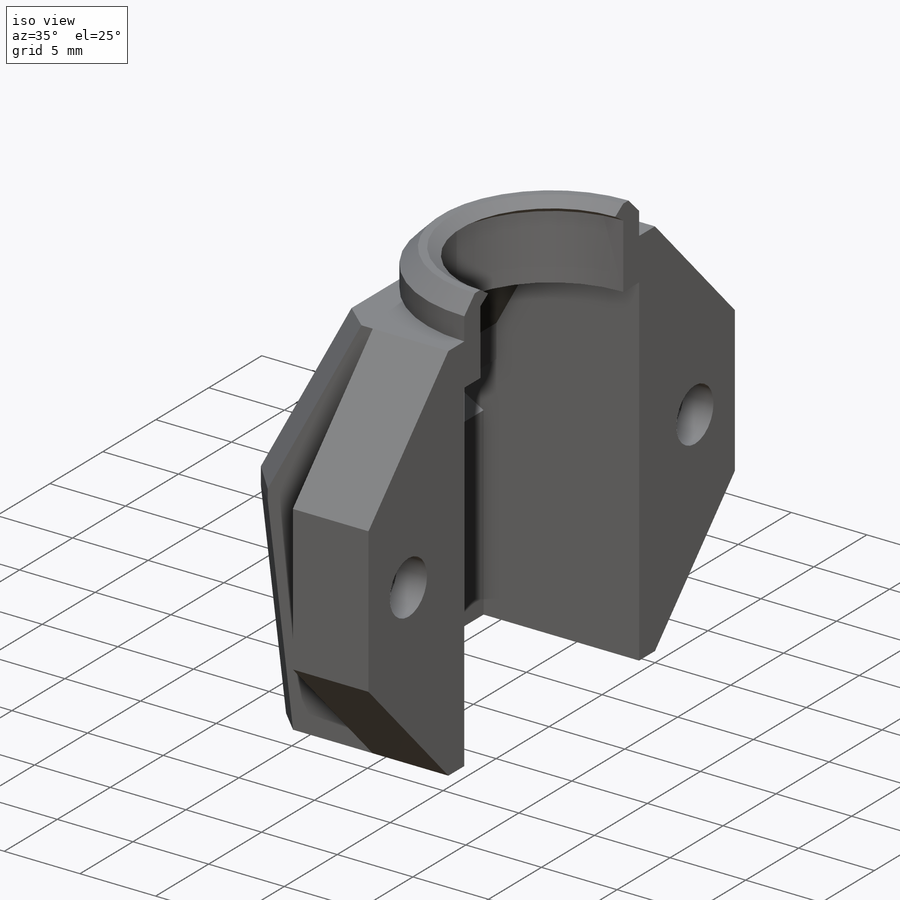
[diagram: iso view]
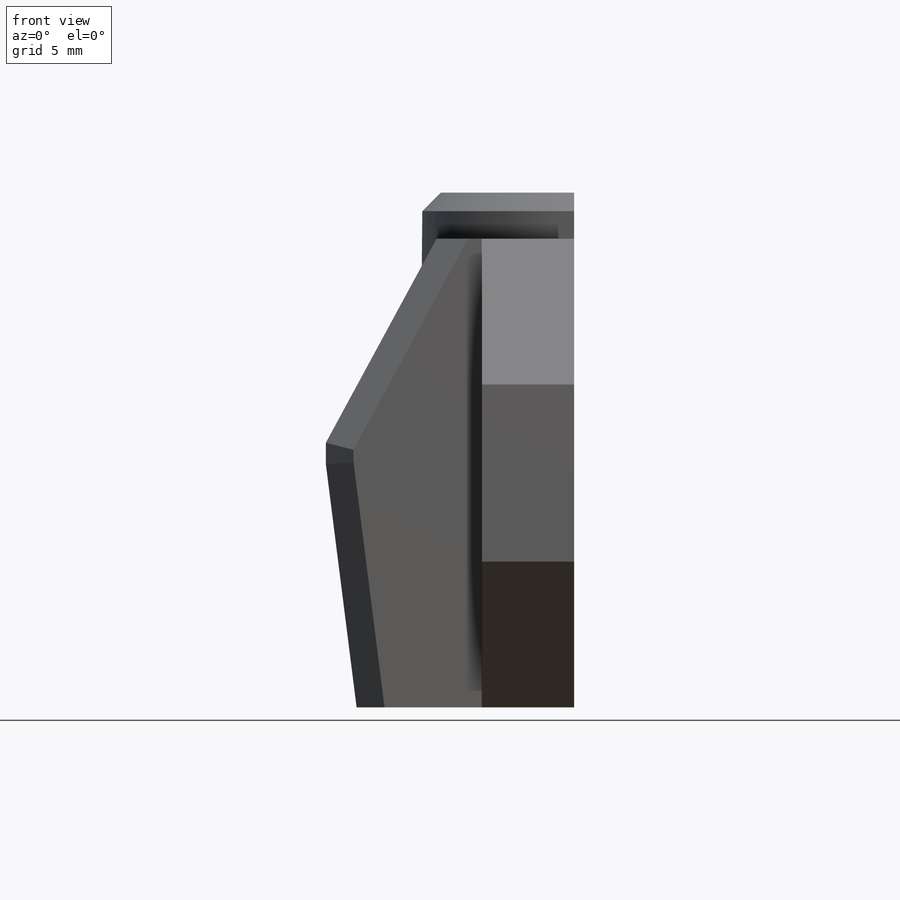
[diagram: front view]
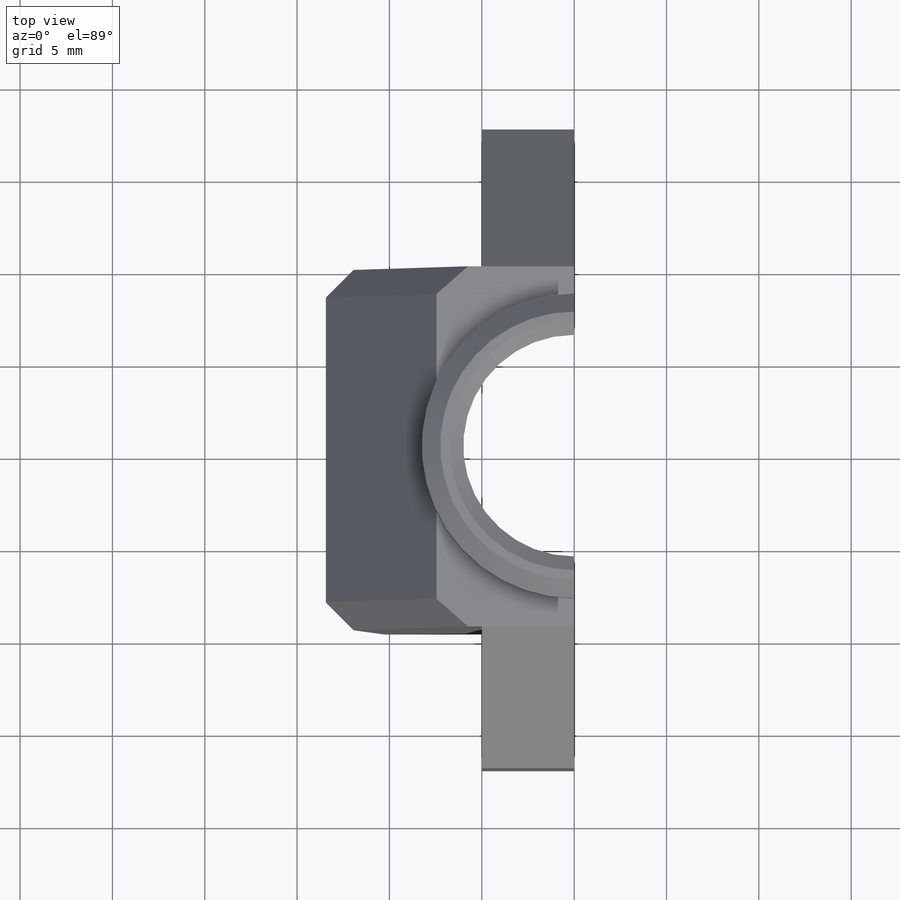
[diagram: top view]
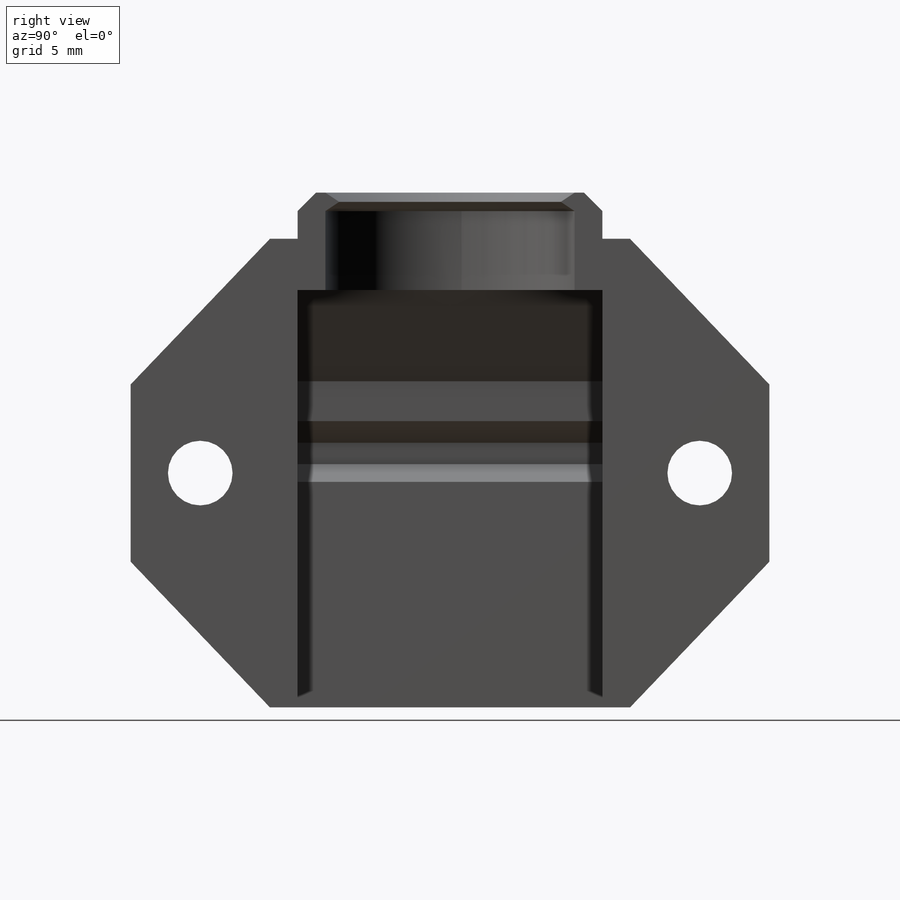
[diagram: right view]
SOLIDWORKS PART (.sldprt)
format: sldprt  version: not decoded by parser v0  size: 333,312 bytes
history: native  units: mm
features: sketch x8, extrude x5, cut_extrude x2, chamfer x2, material x1, revolve x1 (+16 scaffold rows collapsed)
feature tree (35):
  scaffold x16  (default folders/planes/origin — collapsed)
  material  "Material <not specified>"
  sketch  "Sketch1"
  extrude  "Boss-Extrude1"  Depth=19.5mm
  sketch  "Sketch6"
  extrude  "Boss-Extrude5"  Depth=1.5mm
  sketch  "Sketch7"
  extrude  "Boss-Extrude6"  Depth=1.5mm
  sketch  "Sketch8"  dims[D1=13.5mm]
  cut_extrude  "Cut-Extrude2"  [1 undecoded]
  sketch  "Sketch9"  dims[D1=1.5mm]
  extrude  "Boss-Extrude7"  Depth=5mm
  sketch  "Sketch10"  dims[D1=3.5mm D2=5.75mm]
  extrude  "Boss-Extrude8"  Depth=5mm
  chamfer  "Chamfer1"  Distance=1.5mm Angle=45deg
  sketch  "Sketch11"
  cut_extrude  "Cut-Extrude3"  Depth=3mm
  chamfer  "Chamfer2"  Distance=1mm Angle=45deg
  sketch  "Sketch12"  dims[D1=0.75mm]
  revolve  "Revolve1"  Angle=180deg
decode coverage: 13 of 18 modeling features carry decoded parameters
note: 1 parameter value undecoded
note: suppression state not decoded; provenance and decode notes live in map.json
